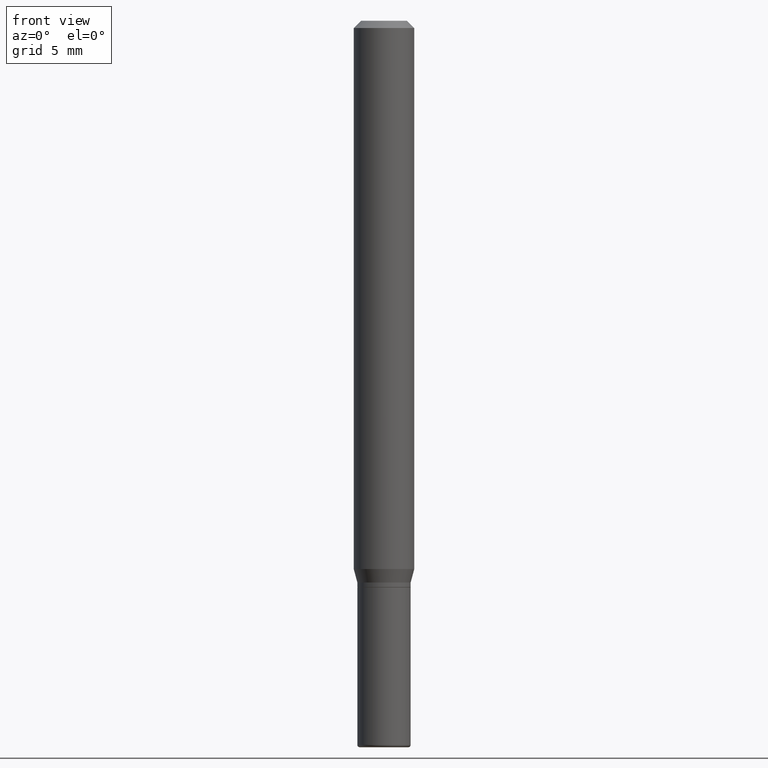
[diagram: clean part render]
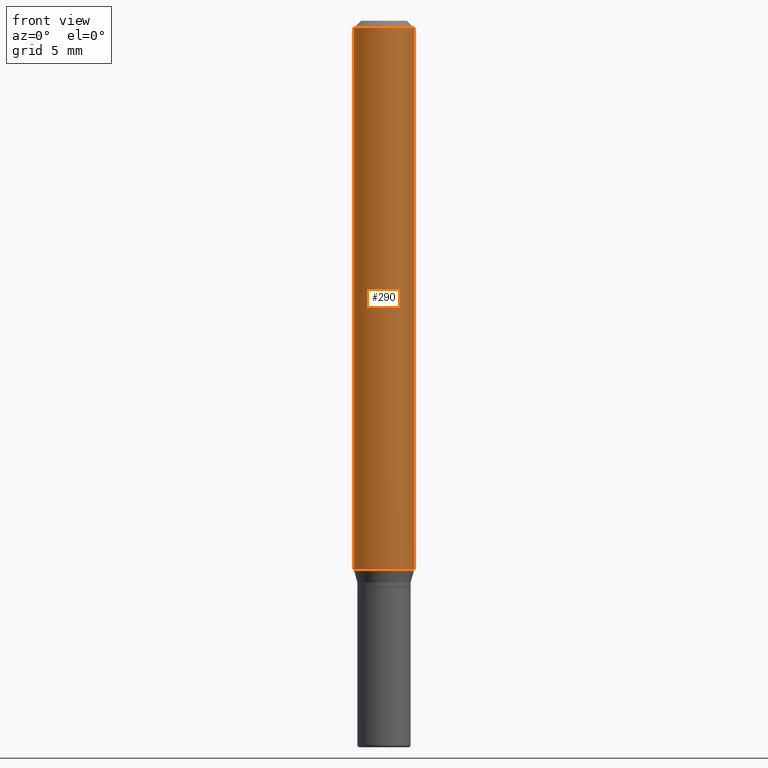
[diagram: same view with one face highlighted and labeled with its STEP entity id]
A machine part, front view. The second image highlights one B-rep face of the part: STEP entity #290.
In plain terms, the highlighted cylindrical surface (edge-blend (fillet) strip) has radius 1.5875 mm, axis along (-0, 0, 1).
Its self-contained STEP definition (entity closure, byte-faithful):
#38 = CIRCLE ( 'NONE', #342, 0.06250000000000000000 ) ;
#42 = DIRECTION ( 'NONE',  ( 1.000000000000000000, -6.982962677686266711E-15, 4.876176775795935793E-29 ) ) ;
#45 = FACE_OUTER_BOUND ( 'NONE', #348, .T. ) ;
#48 = EDGE_CURVE ( 'NONE', #176, #315, #196, .T. ) ;
#59 = CARTESIAN_POINT ( 'NONE',  ( 3.668203209277632395E-31, -5.237222008264614861E-17, -0.01499999999999970281 ) ) ;
#79 = DIRECTION ( 'NONE',  ( -2.445468806185136877E-29, 3.491481338843145188E-15, 1.000000000000000000 ) ) ;
#80 = CARTESIAN_POINT ( 'NONE',  ( 0.000000000000000000, 0.000000000000000000, 0.000000000000000000 ) ) ;
#88 = CARTESIAN_POINT ( 'NONE',  ( 0.06250000000000000000, -4.888073874380378612E-16, -0.01499999999999970281 ) ) ;
#93 = DIRECTION ( 'NONE',  ( 1.000000000000000000, -6.982962677686266711E-15, 0.000000000000000000 ) ) ;
#110 = CARTESIAN_POINT ( 'NONE',  ( 0.06250000000000000000, -4.364351673553916694E-16, 3.047610484872459871E-30 ) ) ;
#155 = ORIENTED_EDGE ( 'NONE', *, *, #211, .T. ) ;
#158 = CARTESIAN_POINT ( 'NONE',  ( -0.06250000000000000000, -1.558292130156881494E-15, -0.01499999999999970281 ) ) ;
#176 = VERTEX_POINT ( 'NONE', #337 ) ;
#183 = AXIS2_PLACEMENT_3D ( 'NONE', #80, #286, #42 ) ;
#187 = EDGE_CURVE ( 'NONE', #315, #425, #241, .T. ) ;
#188 = DIRECTION ( 'NONE',  ( 1.000000000000000000, -6.982962677686262766E-15, 0.000000000000000000 ) ) ;
#196 = LINE ( 'NONE', #280, #363 ) ;
#201 = CYLINDRICAL_SURFACE ( 'NONE', #183, 0.06250000000000000000 ) ;
#204 = VECTOR ( 'NONE', #459, 39.37007874015748143 ) ;
#211 = EDGE_CURVE ( 'NONE', #222, #425, #257, .T. ) ;
#222 = VERTEX_POINT ( 'NONE', #387 ) ;
#231 = ORIENTED_EDGE ( 'NONE', *, *, #187, .F. ) ;
#239 = ORIENTED_EDGE ( 'NONE', *, *, #48, .F. ) ;
#241 = CIRCLE ( 'NONE', #399, 0.06250000000000000000 ) ;
#245 = EDGE_CURVE ( 'NONE', #176, #222, #38, .T. ) ;
#257 = LINE ( 'NONE', #110, #204 ) ;
#280 = CARTESIAN_POINT ( 'NONE',  ( -0.06250000000000000000, 4.440892098500626162E-16, -3.074334431409316114E-30 ) ) ;
#286 = DIRECTION ( 'NONE',  ( -2.445468806185136597E-29, 3.491481338843145583E-15, 1.000000000000000000 ) ) ;
#290 = ADVANCED_FACE ( 'NONE', ( #45 ), #201, .T. ) ;
#315 = VERTEX_POINT ( 'NONE', #158 ) ;
#337 = CARTESIAN_POINT ( 'NONE',  ( -0.06250000000000000000, -3.508301250081179708E-15, -1.132009618943234264 ) ) ;
#342 = AXIS2_PLACEMENT_3D ( 'NONE', #389, #467, #188 ) ;
#348 = EDGE_LOOP ( 'NONE', ( #239, #402, #155, #231 ) ) ;
#352 = DIRECTION ( 'NONE',  ( -2.445468806185136597E-29, 3.491481338843145583E-15, 1.000000000000000000 ) ) ;
#363 = VECTOR ( 'NONE', #79, 39.37007874015748143 ) ;
#387 = CARTESIAN_POINT ( 'NONE',  ( 0.06250000000000000000, -4.388825627286634782E-15, -1.132009618943234264 ) ) ;
#389 = CARTESIAN_POINT ( 'NONE',  ( 2.768294211427202327E-29, -3.952390459931242324E-15, -1.132009618943234264 ) ) ;
#399 = AXIS2_PLACEMENT_3D ( 'NONE', #59, #352, #93 ) ;
#402 = ORIENTED_EDGE ( 'NONE', *, *, #245, .T. ) ;
#425 = VERTEX_POINT ( 'NONE', #88 ) ;
#459 = DIRECTION ( 'NONE',  ( -2.445468806185136877E-29, 3.491481338843145188E-15, 1.000000000000000000 ) ) ;
#467 = DIRECTION ( 'NONE',  ( -2.445468806185136597E-29, 3.491481338843145583E-15, 1.000000000000000000 ) ) ;